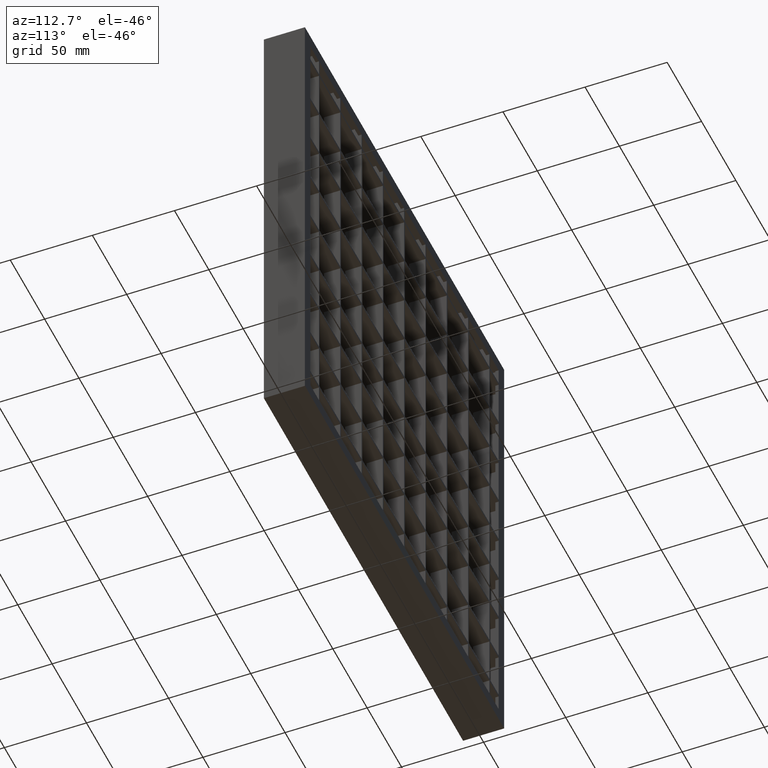
[diagram: clean part render]
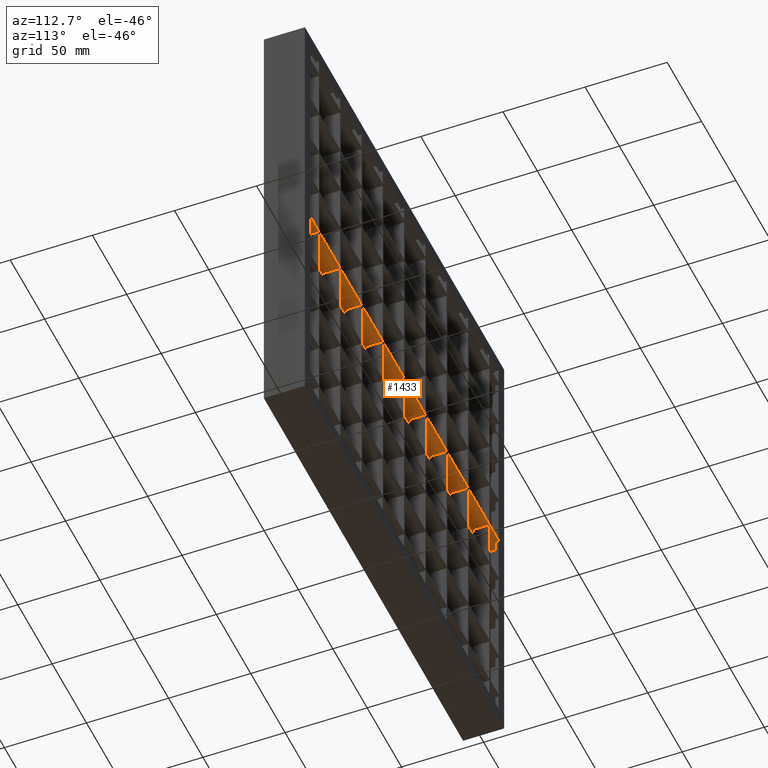
[diagram: same view with one face highlighted and labeled with its STEP entity id]
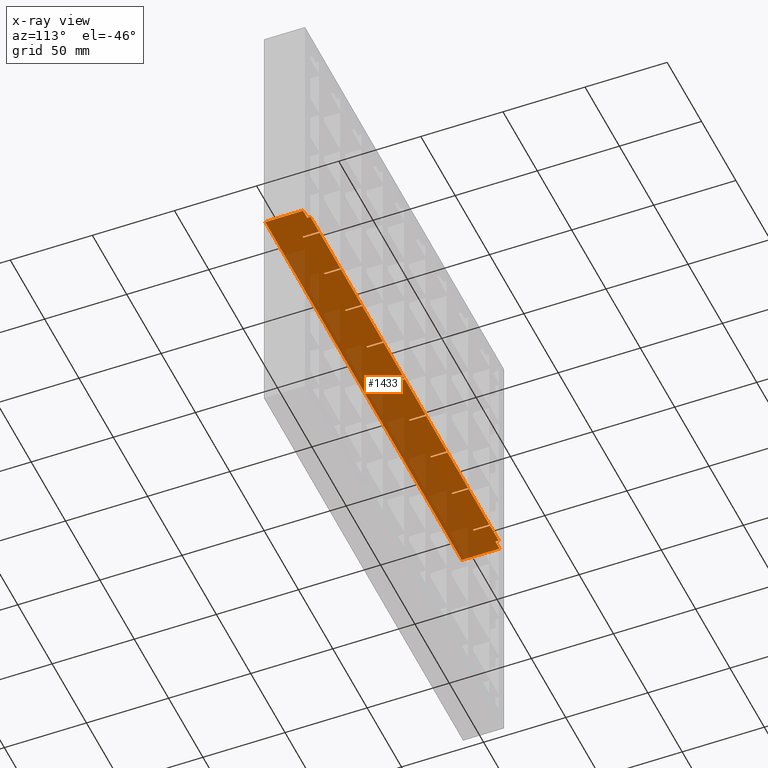
[diagram: x-ray of the same camera — body ghosted, the highlighted face saturated]
A machine part, auxiliary view. The second image highlights one B-rep face of the part: STEP entity #1433.
The next image is the same camera in x-ray: the body ghosted, the highlighted face saturated — about 39% of this face is hidden behind the body in this view.
In plain terms, the highlighted planar face has unit normal (0, 0, -1).
Its self-contained STEP definition (entity closure, byte-faithful):
#75 = LINE ( 'NONE', #12873, #5687 ) ;
#100 = ORIENTED_EDGE ( 'NONE', *, *, #13872, .T. ) ;
#215 = VERTEX_POINT ( 'NONE', #11838 ) ;
#226 = EDGE_CURVE ( 'NONE', #14384, #2598, #2343, .T. ) ;
#261 = DIRECTION ( 'NONE',  ( 1.000000000000000000, -4.336808689942014300E-016, 0.0000000000000000000 ) ) ;
#286 = CARTESIAN_POINT ( 'NONE',  ( 313.0449595727363900, -12.49999999999987700, -145.7500000000003700 ) ) ;
#361 = CARTESIAN_POINT ( 'NONE',  ( 2.000000000000002700, -12.50000000000000000, -145.7500000000003700 ) ) ;
#415 = LINE ( 'NONE', #2625, #3231 ) ;
#423 = LINE ( 'NONE', #15164, #6029 ) ;
#429 = DIRECTION ( 'NONE',  ( 1.000000000000000000, -4.336808689942014300E-016, 0.0000000000000000000 ) ) ;
#642 = LINE ( 'NONE', #10539, #11649 ) ;
#672 = DIRECTION ( 'NONE',  ( -1.000000000000000000, -4.336808689942014300E-016, 0.0000000000000000000 ) ) ;
#727 = CARTESIAN_POINT ( 'NONE',  ( 144.4999999999999700, -12.49999999999987700, -145.7500000000003700 ) ) ;
#740 = ORIENTED_EDGE ( 'NONE', *, *, #5986, .F. ) ;
#769 = ORIENTED_EDGE ( 'NONE', *, *, #9769, .F. ) ;
#839 = VECTOR ( 'NONE', #15226, 1000.000000000000000 ) ;
#873 = LINE ( 'NONE', #4006, #3293 ) ;
#988 = ORIENTED_EDGE ( 'NONE', *, *, #8355, .T. ) ;
#993 = DIRECTION ( 'NONE',  ( -1.000000000000000000, -3.061616997868382600E-016, 0.0000000000000000000 ) ) ;
#1096 = EDGE_CURVE ( 'NONE', #5256, #4355, #8677, .T. ) ;
#1158 = CARTESIAN_POINT ( 'NONE',  ( 114.4999999999999600, 2.500000000000002200, -145.7500000000003700 ) ) ;
#1213 = EDGE_CURVE ( 'NONE', #3370, #11521, #10171, .T. ) ;
#1221 = ORIENTED_EDGE ( 'NONE', *, *, #7866, .F. ) ;
#1237 = CARTESIAN_POINT ( 'NONE',  ( 282.0000000000001100, 12.50000000000000700, -145.7500000000003700 ) ) ;
#1390 = DIRECTION ( 'NONE',  ( 0.0000000000000000000, -1.000000000000000000, 0.0000000000000000000 ) ) ;
#1433 = ADVANCED_FACE ( 'NONE', ( #6227 ), #2714, .T. ) ;
#1478 = DIRECTION ( 'NONE',  ( 8.673617379884037400E-016, 1.000000000000000000, 0.0000000000000000000 ) ) ;
#1552 = ORIENTED_EDGE ( 'NONE', *, *, #3058, .F. ) ;
#1554 = CARTESIAN_POINT ( 'NONE',  ( 313.0449595727363900, 12.50000000000012400, -145.7500000000003700 ) ) ;
#1630 = ORIENTED_EDGE ( 'NONE', *, *, #11824, .T. ) ;
#1636 = CARTESIAN_POINT ( 'NONE',  ( 83.49999999999995700, 2.500000000000002200, -145.7500000000003700 ) ) ;
#1654 = ORIENTED_EDGE ( 'NONE', *, *, #12263, .T. ) ;
#1708 = VECTOR ( 'NONE', #14392, 1000.000000000000000 ) ;
#1758 = CARTESIAN_POINT ( 'NONE',  ( 313.0449595727363900, 12.50000000000012400, -145.7500000000003700 ) ) ;
#1808 = EDGE_CURVE ( 'NONE', #3598, #3147, #423, .T. ) ;
#1862 = CARTESIAN_POINT ( 'NONE',  ( 114.4999999999999600, -12.49999999999987700, -145.7500000000003700 ) ) ;
#1922 = VECTOR ( 'NONE', #3187, 1000.000000000000000 ) ;
#1936 = CARTESIAN_POINT ( 'NONE',  ( 82.49999999999995700, 2.500000000000001800, -145.7500000000003700 ) ) ;
#1947 = ORIENTED_EDGE ( 'NONE', *, *, #10652, .F. ) ;
#1950 = DIRECTION ( 'NONE',  ( -1.000000000000000000, -4.336808689942014300E-016, 0.0000000000000000000 ) ) ;
#1962 = ORIENTED_EDGE ( 'NONE', *, *, #6667, .F. ) ;
#2003 = CARTESIAN_POINT ( 'NONE',  ( 313.0449595727363900, 12.50000000000012400, -145.7500000000003700 ) ) ;
#2010 = ORIENTED_EDGE ( 'NONE', *, *, #8763, .F. ) ;
#2052 = VERTEX_POINT ( 'NONE', #14139 ) ;
#2122 = ORIENTED_EDGE ( 'NONE', *, *, #5871, .T. ) ;
#2225 = EDGE_CURVE ( 'NONE', #7339, #10629, #12707, .T. ) ;
#2316 = VERTEX_POINT ( 'NONE', #11449 ) ;
#2343 = LINE ( 'NONE', #1554, #15443 ) ;
#2372 = VERTEX_POINT ( 'NONE', #5407 ) ;
#2377 = CARTESIAN_POINT ( 'NONE',  ( 313.0449595727363900, 12.50000000000012400, -145.7500000000003700 ) ) ;
#2392 = VERTEX_POINT ( 'NONE', #14888 ) ;
#2438 = VERTEX_POINT ( 'NONE', #5563 ) ;
#2582 = ORIENTED_EDGE ( 'NONE', *, *, #2225, .F. ) ;
#2593 = VERTEX_POINT ( 'NONE', #11808 ) ;
#2598 = VERTEX_POINT ( 'NONE', #11741 ) ;
#2617 = VERTEX_POINT ( 'NONE', #9328 ) ;
#2625 = CARTESIAN_POINT ( 'NONE',  ( 313.0449595727363900, 2.500000000000115000, -145.7500000000003700 ) ) ;
#2659 = VERTEX_POINT ( 'NONE', #7059 ) ;
#2714 = PLANE ( 'NONE',  #7176 ) ;
#2744 = EDGE_LOOP ( 'NONE', ( #4537, #4223, #9492, #5272, #9778, #11828, #14726, #100, #6538, #13971, #1221, #3748, #769, #10423, #7802, #14202, #1552, #5612, #2582, #11555, #15432, #13021, #1947, #3364, #5707, #13813, #7588, #1962, #14642, #5735, #2747, #988, #1630, #4113, #740, #13260, #14456, #11890, #2010, #5100, #1654, #2122, #10784, #8662 ) ) ;
#2747 = ORIENTED_EDGE ( 'NONE', *, *, #6899, .F. ) ;
#2761 = VERTEX_POINT ( 'NONE', #8322 ) ;
#2770 = CARTESIAN_POINT ( 'NONE',  ( 313.0449595727363900, -12.49999999999987700, -145.7500000000003700 ) ) ;
#2876 = VECTOR ( 'NONE', #15550, 1000.000000000000000 ) ;
#2878 = EDGE_CURVE ( 'NONE', #3598, #7054, #5880, .T. ) ;
#2883 = EDGE_CURVE ( 'NONE', #4775, #9159, #9026, .T. ) ;
#2955 = LINE ( 'NONE', #9356, #4261 ) ;
#2962 = DIRECTION ( 'NONE',  ( -1.000000000000000000, -3.061616997868382600E-016, 0.0000000000000000000 ) ) ;
#2970 = EDGE_CURVE ( 'NONE', #12220, #9245, #12915, .T. ) ;
#3058 = EDGE_CURVE ( 'NONE', #2761, #11566, #415, .T. ) ;
#3090 = LINE ( 'NONE', #6509, #12026 ) ;
#3132 = LINE ( 'NONE', #13324, #7813 ) ;
#3147 = VERTEX_POINT ( 'NONE', #12506 ) ;
#3187 = DIRECTION ( 'NONE',  ( 0.0000000000000000000, 1.000000000000000000, 0.0000000000000000000 ) ) ;
#3191 = DIRECTION ( 'NONE',  ( 0.0000000000000000000, 1.000000000000000000, 0.0000000000000000000 ) ) ;
#3231 = VECTOR ( 'NONE', #672, 1000.000000000000000 ) ;
#3250 = DIRECTION ( 'NONE',  ( 1.000000000000000000, 0.0000000000000000000, 0.0000000000000000000 ) ) ;
#3264 = DIRECTION ( 'NONE',  ( -1.000000000000000000, -3.061616997868382600E-016, 0.0000000000000000000 ) ) ;
#3280 = VECTOR ( 'NONE', #5330, 1000.000000000000000 ) ;
#3293 = VECTOR ( 'NONE', #12271, 1000.000000000000000 ) ;
#3306 = VERTEX_POINT ( 'NONE', #14797 ) ;
#3364 = ORIENTED_EDGE ( 'NONE', *, *, #10446, .F. ) ;
#3370 = VERTEX_POINT ( 'NONE', #10134 ) ;
#3477 = CARTESIAN_POINT ( 'NONE',  ( 269.5000000000001100, 2.500000000000001800, -145.7500000000003700 ) ) ;
#3498 = LINE ( 'NONE', #8064, #11886 ) ;
#3506 = CARTESIAN_POINT ( 'NONE',  ( 20.49999999999996400, 2.500000000000001800, -145.7500000000003700 ) ) ;
#3592 = EDGE_CURVE ( 'NONE', #11566, #15080, #11585, .T. ) ;
#3597 = VERTEX_POINT ( 'NONE', #5937 ) ;
#3598 = VERTEX_POINT ( 'NONE', #1237 ) ;
#3601 = CARTESIAN_POINT ( 'NONE',  ( 269.5000000000001100, 12.50000000000000200, -145.7500000000003700 ) ) ;
#3604 = VECTOR ( 'NONE', #5070, 1000.000000000000000 ) ;
#3671 = CARTESIAN_POINT ( 'NONE',  ( 313.0449595727363900, 12.50000000000012400, -145.7500000000003700 ) ) ;
#3741 = CARTESIAN_POINT ( 'NONE',  ( 313.0449595727363900, 12.50000000000012400, -145.7500000000003700 ) ) ;
#3748 = ORIENTED_EDGE ( 'NONE', *, *, #12541, .F. ) ;
#3844 = LINE ( 'NONE', #727, #839 ) ;
#4006 = CARTESIAN_POINT ( 'NONE',  ( 238.5000000000001700, -12.49999999999987700, -145.7500000000003700 ) ) ;
#4113 = ORIENTED_EDGE ( 'NONE', *, *, #15180, .T. ) ;
#4123 = EDGE_CURVE ( 'NONE', #9159, #2372, #11378, .T. ) ;
#4160 = CARTESIAN_POINT ( 'NONE',  ( 20.49999999999990800, 12.50000000000003400, -145.7500000000003700 ) ) ;
#4219 = VECTOR ( 'NONE', #14413, 1000.000000000000000 ) ;
#4223 = ORIENTED_EDGE ( 'NONE', *, *, #15186, .T. ) ;
#4242 = LINE ( 'NONE', #2003, #13574 ) ;
#4261 = VECTOR ( 'NONE', #9410, 1000.000000000000000 ) ;
#4275 = VECTOR ( 'NONE', #11218, 1000.000000000000000 ) ;
#4285 = VERTEX_POINT ( 'NONE', #12882 ) ;
#4336 = DIRECTION ( 'NONE',  ( 8.673617379884035500E-016, -1.000000000000000000, 0.0000000000000000000 ) ) ;
#4351 = CARTESIAN_POINT ( 'NONE',  ( 313.0449595727363900, 2.499999999999955600, -145.7500000000003700 ) ) ;
#4355 = VERTEX_POINT ( 'NONE', #14094 ) ;
#4407 = DIRECTION ( 'NONE',  ( 0.0000000000000000000, 1.000000000000000000, 0.0000000000000000000 ) ) ;
#4412 = LINE ( 'NONE', #4762, #4219 ) ;
#4427 = CARTESIAN_POINT ( 'NONE',  ( 313.0449595727363900, 2.500000000000101300, -145.7500000000003700 ) ) ;
#4447 = LINE ( 'NONE', #11577, #7800 ) ;
#4502 = DIRECTION ( 'NONE',  ( 0.0000000000000000000, -1.000000000000000000, 0.0000000000000000000 ) ) ;
#4519 = LINE ( 'NONE', #4427, #6551 ) ;
#4537 = ORIENTED_EDGE ( 'NONE', *, *, #10722, .T. ) ;
#4610 = VECTOR ( 'NONE', #5918, 1000.000000000000000 ) ;
#4644 = VERTEX_POINT ( 'NONE', #12150 ) ;
#4686 = CARTESIAN_POINT ( 'NONE',  ( 145.4999999999999700, 2.500000000000002200, -145.7500000000003700 ) ) ;
#4719 = VERTEX_POINT ( 'NONE', #8597 ) ;
#4749 = VECTOR ( 'NONE', #2962, 1000.000000000000000 ) ;
#4762 = CARTESIAN_POINT ( 'NONE',  ( 269.5000000000001100, -12.49999999999987700, -145.7500000000003700 ) ) ;
#4775 = VERTEX_POINT ( 'NONE', #9952 ) ;
#4785 = LINE ( 'NONE', #11221, #3280 ) ;
#4839 = LINE ( 'NONE', #9221, #6867 ) ;
#4890 = LINE ( 'NONE', #10002, #8823 ) ;
#4972 = CARTESIAN_POINT ( 'NONE',  ( 313.0449595727363900, 2.499999999999943200, -145.7500000000003700 ) ) ;
#5041 = CARTESIAN_POINT ( 'NONE',  ( 52.49999999999996400, 12.50000000000000200, -145.7500000000003700 ) ) ;
#5070 = DIRECTION ( 'NONE',  ( 0.0000000000000000000, -1.000000000000000000, 0.0000000000000000000 ) ) ;
#5100 = ORIENTED_EDGE ( 'NONE', *, *, #2970, .T. ) ;
#5119 = VECTOR ( 'NONE', #12437, 1000.000000000000000 ) ;
#5256 = VERTEX_POINT ( 'NONE', #5318 ) ;
#5272 = ORIENTED_EDGE ( 'NONE', *, *, #1808, .T. ) ;
#5318 = CARTESIAN_POINT ( 'NONE',  ( 288.0000000000000600, -12.50000000000000000, -145.7500000000003700 ) ) ;
#5330 = DIRECTION ( 'NONE',  ( -1.000000000000000000, -3.061616997868382600E-016, 0.0000000000000000000 ) ) ;
#5379 = VECTOR ( 'NONE', #12252, 1000.000000000000000 ) ;
#5407 = CARTESIAN_POINT ( 'NONE',  ( 144.4999999999999700, 2.500000000000001800, -145.7500000000003700 ) ) ;
#5502 = DIRECTION ( 'NONE',  ( -1.000000000000000000, -3.061616997868382600E-016, 0.0000000000000000000 ) ) ;
#5563 = CARTESIAN_POINT ( 'NONE',  ( 114.4999999999999600, 12.50000000000000200, -145.7500000000003700 ) ) ;
#5612 = ORIENTED_EDGE ( 'NONE', *, *, #10771, .F. ) ;
#5687 = VECTOR ( 'NONE', #993, 1000.000000000000000 ) ;
#5707 = ORIENTED_EDGE ( 'NONE', *, *, #7295, .F. ) ;
#5735 = ORIENTED_EDGE ( 'NONE', *, *, #2883, .F. ) ;
#5803 = CARTESIAN_POINT ( 'NONE',  ( 145.0000000000000600, 10.50000000000000500, -145.7500000000003700 ) ) ;
#5871 = EDGE_CURVE ( 'NONE', #4644, #2598, #873, .T. ) ;
#5880 = LINE ( 'NONE', #2377, #2876 ) ;
#5887 = DIRECTION ( 'NONE',  ( -1.000000000000000000, -4.336808689942014300E-016, 0.0000000000000000000 ) ) ;
#5918 = DIRECTION ( 'NONE',  ( 0.0000000000000000000, -1.000000000000000000, 0.0000000000000000000 ) ) ;
#5937 = CARTESIAN_POINT ( 'NONE',  ( 144.4999999999999700, 12.50000000000007100, -145.7500000000003700 ) ) ;
#5980 = VERTEX_POINT ( 'NONE', #4160 ) ;
#5986 = EDGE_CURVE ( 'NONE', #3306, #11696, #4242, .T. ) ;
#6029 = VECTOR ( 'NONE', #4336, 1000.000000000000000 ) ;
#6157 = VECTOR ( 'NONE', #7799, 1000.000000000000000 ) ;
#6220 = VERTEX_POINT ( 'NONE', #13215 ) ;
#6227 = FACE_OUTER_BOUND ( 'NONE', #2744, .T. ) ;
#6252 = EDGE_CURVE ( 'NONE', #3306, #2659, #7782, .T. ) ;
#6405 = VERTEX_POINT ( 'NONE', #361 ) ;
#6440 = EDGE_CURVE ( 'NONE', #13225, #6220, #7402, .T. ) ;
#6448 = CARTESIAN_POINT ( 'NONE',  ( 113.4999999999999600, 12.50000000000006400, -145.7500000000003700 ) ) ;
#6509 = CARTESIAN_POINT ( 'NONE',  ( 2.000000000000002700, 10.50000000000000500, -145.7500000000003700 ) ) ;
#6538 = ORIENTED_EDGE ( 'NONE', *, *, #15490, .T. ) ;
#6545 = EDGE_CURVE ( 'NONE', #15080, #3370, #4785, .T. ) ;
#6551 = VECTOR ( 'NONE', #9334, 1000.000000000000000 ) ;
#6667 = EDGE_CURVE ( 'NONE', #2372, #3597, #3844, .T. ) ;
#6743 = LINE ( 'NONE', #3741, #1708 ) ;
#6800 = EDGE_CURVE ( 'NONE', #11673, #11236, #9641, .T. ) ;
#6867 = VECTOR ( 'NONE', #3264, 1000.000000000000000 ) ;
#6899 = EDGE_CURVE ( 'NONE', #2392, #4775, #75, .T. ) ;
#7054 = VERTEX_POINT ( 'NONE', #3601 ) ;
#7059 = CARTESIAN_POINT ( 'NONE',  ( 206.5000000000001100, 2.500000000000002200, -145.7500000000003700 ) ) ;
#7137 = DIRECTION ( 'NONE',  ( 0.0000000000000000000, 1.000000000000000000, 0.0000000000000000000 ) ) ;
#7176 = AXIS2_PLACEMENT_3D ( 'NONE', #2770, #12345, #7629 ) ;
#7295 = EDGE_CURVE ( 'NONE', #7869, #2617, #7551, .T. ) ;
#7339 = VERTEX_POINT ( 'NONE', #9077 ) ;
#7402 = LINE ( 'NONE', #9733, #8706 ) ;
#7491 = LINE ( 'NONE', #7902, #11223 ) ;
#7551 = LINE ( 'NONE', #15474, #10172 ) ;
#7588 = ORIENTED_EDGE ( 'NONE', *, *, #11969, .F. ) ;
#7629 = DIRECTION ( 'NONE',  ( -1.000000000000000000, 0.0000000000000000000, 0.0000000000000000000 ) ) ;
#7702 = LINE ( 'NONE', #8817, #8263 ) ;
#7727 = DIRECTION ( 'NONE',  ( 1.000000000000000000, 0.0000000000000000000, 0.0000000000000000000 ) ) ;
#7782 = LINE ( 'NONE', #8388, #4610 ) ;
#7799 = DIRECTION ( 'NONE',  ( 1.000000000000000000, -4.336808689942014300E-016, 0.0000000000000000000 ) ) ;
#7800 = VECTOR ( 'NONE', #3191, 1000.000000000000000 ) ;
#7802 = ORIENTED_EDGE ( 'NONE', *, *, #6545, .F. ) ;
#7813 = VECTOR ( 'NONE', #261, 1000.000000000000000 ) ;
#7866 = EDGE_CURVE ( 'NONE', #5980, #6220, #10713, .T. ) ;
#7869 = VERTEX_POINT ( 'NONE', #1158 ) ;
#7902 = CARTESIAN_POINT ( 'NONE',  ( 113.4999999999999600, -12.49999999999987700, -145.7500000000003700 ) ) ;
#7998 = CARTESIAN_POINT ( 'NONE',  ( 288.0000000000000600, -12.49999999999987700, -145.7500000000003700 ) ) ;
#8064 = CARTESIAN_POINT ( 'NONE',  ( 207.5000000000001400, -12.49999999999987700, -145.7500000000003700 ) ) ;
#8263 = VECTOR ( 'NONE', #12432, 1000.000000000000000 ) ;
#8308 = CARTESIAN_POINT ( 'NONE',  ( 83.49999999999995700, -12.49999999999987700, -145.7500000000003700 ) ) ;
#8322 = CARTESIAN_POINT ( 'NONE',  ( 52.49999999999996400, 2.500000000000002200, -145.7500000000003700 ) ) ;
#8355 = EDGE_CURVE ( 'NONE', #2392, #4719, #642, .T. ) ;
#8377 = VECTOR ( 'NONE', #12287, 1000.000000000000000 ) ;
#8388 = CARTESIAN_POINT ( 'NONE',  ( 206.5000000000001100, -12.49999999999987700, -145.7500000000003700 ) ) ;
#8473 = VECTOR ( 'NONE', #9576, 1000.000000000000000 ) ;
#8518 = VECTOR ( 'NONE', #14469, 1000.000000000000000 ) ;
#8566 = DIRECTION ( 'NONE',  ( 1.000000000000000000, -4.336808689942014300E-016, 0.0000000000000000000 ) ) ;
#8578 = EDGE_CURVE ( 'NONE', #5256, #6405, #9980, .T. ) ;
#8597 = CARTESIAN_POINT ( 'NONE',  ( 175.5000000000001100, 2.500000000000002200, -145.7500000000003700 ) ) ;
#8662 = ORIENTED_EDGE ( 'NONE', *, *, #13715, .T. ) ;
#8677 = LINE ( 'NONE', #7998, #1922 ) ;
#8687 = VERTEX_POINT ( 'NONE', #6448 ) ;
#8706 = VECTOR ( 'NONE', #1478, 1000.000000000000000 ) ;
#8718 = EDGE_CURVE ( 'NONE', #2438, #7869, #14853, .T. ) ;
#8763 = EDGE_CURVE ( 'NONE', #12220, #2593, #9789, .T. ) ;
#8789 = CARTESIAN_POINT ( 'NONE',  ( 268.5000000000001100, -12.49999999999987700, -145.7500000000003700 ) ) ;
#8817 = CARTESIAN_POINT ( 'NONE',  ( 313.0449595727363900, 2.500000000000128800, -145.7500000000003700 ) ) ;
#8823 = VECTOR ( 'NONE', #429, 1000.000000000000000 ) ;
#8896 = VECTOR ( 'NONE', #4502, 1000.000000000000000 ) ;
#9015 = CARTESIAN_POINT ( 'NONE',  ( 313.0449595727363900, 2.500000000000075100, -145.7500000000003700 ) ) ;
#9026 = LINE ( 'NONE', #9579, #5379 ) ;
#9034 = CARTESIAN_POINT ( 'NONE',  ( 21.49999999999996400, -12.49999999999987700, -145.7500000000003700 ) ) ;
#9077 = CARTESIAN_POINT ( 'NONE',  ( 82.49999999999995700, 12.50000000000005300, -145.7500000000003700 ) ) ;
#9156 = VERTEX_POINT ( 'NONE', #3477 ) ;
#9159 = VERTEX_POINT ( 'NONE', #4686 ) ;
#9221 = CARTESIAN_POINT ( 'NONE',  ( 313.0449595727363900, 12.50000000000012400, -145.7500000000003700 ) ) ;
#9245 = VERTEX_POINT ( 'NONE', #12115 ) ;
#9316 = CARTESIAN_POINT ( 'NONE',  ( 51.49999999999993600, 12.50000000000004400, -145.7500000000003700 ) ) ;
#9328 = CARTESIAN_POINT ( 'NONE',  ( 113.4999999999999600, 2.500000000000001800, -145.7500000000003700 ) ) ;
#9334 = DIRECTION ( 'NONE',  ( -1.000000000000000000, -4.336808689942014300E-016, 0.0000000000000000000 ) ) ;
#9356 = CARTESIAN_POINT ( 'NONE',  ( 2.000000000000002700, -12.50000000000000000, -145.7500000000003700 ) ) ;
#9410 = DIRECTION ( 'NONE',  ( 0.0000000000000000000, 1.000000000000000000, 0.0000000000000000000 ) ) ;
#9492 = ORIENTED_EDGE ( 'NONE', *, *, #2878, .F. ) ;
#9576 = DIRECTION ( 'NONE',  ( -1.000000000000000000, -3.061616997868382600E-016, 0.0000000000000000000 ) ) ;
#9579 = CARTESIAN_POINT ( 'NONE',  ( 145.4999999999999700, -12.49999999999987700, -145.7500000000003700 ) ) ;
#9580 = VECTOR ( 'NONE', #11151, 1000.000000000000000 ) ;
#9641 = LINE ( 'NONE', #8308, #8896 ) ;
#9715 = VECTOR ( 'NONE', #3250, 1000.000000000000000 ) ;
#9733 = CARTESIAN_POINT ( 'NONE',  ( 7.999999999999992900, 10.50000000000000500, -145.7500000000003700 ) ) ;
#9769 = EDGE_CURVE ( 'NONE', #11521, #13952, #7702, .T. ) ;
#9778 = ORIENTED_EDGE ( 'NONE', *, *, #11528, .T. ) ;
#9789 = LINE ( 'NONE', #1758, #4749 ) ;
#9866 = LINE ( 'NONE', #14672, #8377 ) ;
#9952 = CARTESIAN_POINT ( 'NONE',  ( 145.4999999999999700, 12.50000000000000200, -145.7500000000003700 ) ) ;
#9980 = LINE ( 'NONE', #286, #11837 ) ;
#10002 = CARTESIAN_POINT ( 'NONE',  ( 313.0449595727363900, 2.499999999999983100, -145.7500000000003700 ) ) ;
#10134 = CARTESIAN_POINT ( 'NONE',  ( 21.49999999999996400, 12.50000000000000200, -145.7500000000003700 ) ) ;
#10171 = LINE ( 'NONE', #9034, #15044 ) ;
#10172 = VECTOR ( 'NONE', #5887, 1000.000000000000000 ) ;
#10295 = VECTOR ( 'NONE', #7137, 1000.000000000000000 ) ;
#10423 = ORIENTED_EDGE ( 'NONE', *, *, #1213, .F. ) ;
#10446 = EDGE_CURVE ( 'NONE', #2617, #8687, #7491, .T. ) ;
#10454 = CARTESIAN_POINT ( 'NONE',  ( 51.49999999999996400, 2.500000000000001800, -145.7500000000003700 ) ) ;
#10481 = CARTESIAN_POINT ( 'NONE',  ( 7.999999999999992900, 10.50000000000000500, -145.7500000000003700 ) ) ;
#10538 = EDGE_CURVE ( 'NONE', #11236, #11363, #4519, .T. ) ;
#10539 = CARTESIAN_POINT ( 'NONE',  ( 175.5000000000001100, -12.49999999999987700, -145.7500000000003700 ) ) ;
#10563 = CARTESIAN_POINT ( 'NONE',  ( 268.5000000000001100, 12.50000000000000200, -145.7500000000003700 ) ) ;
#10629 = VERTEX_POINT ( 'NONE', #5041 ) ;
#10652 = EDGE_CURVE ( 'NONE', #8687, #11673, #6743, .T. ) ;
#10658 = CARTESIAN_POINT ( 'NONE',  ( 83.49999999999995700, 12.50000000000000200, -145.7500000000003700 ) ) ;
#10713 = LINE ( 'NONE', #3671, #8473 ) ;
#10722 = EDGE_CURVE ( 'NONE', #2316, #9156, #4890, .T. ) ;
#10771 = EDGE_CURVE ( 'NONE', #10629, #2761, #14604, .T. ) ;
#10784 = ORIENTED_EDGE ( 'NONE', *, *, #226, .F. ) ;
#11151 = DIRECTION ( 'NONE',  ( -1.000000000000000000, -3.061616997868382600E-016, 0.0000000000000000000 ) ) ;
#11196 = CARTESIAN_POINT ( 'NONE',  ( 313.0449595727363900, 12.50000000000012400, -145.7500000000003700 ) ) ;
#11218 = DIRECTION ( 'NONE',  ( 0.0000000000000000000, -1.000000000000000000, 0.0000000000000000000 ) ) ;
#11221 = CARTESIAN_POINT ( 'NONE',  ( 313.0449595727363900, 12.50000000000012400, -145.7500000000003700 ) ) ;
#11223 = VECTOR ( 'NONE', #4407, 1000.000000000000000 ) ;
#11236 = VERTEX_POINT ( 'NONE', #1636 ) ;
#11344 = EDGE_CURVE ( 'NONE', #2659, #2052, #14183, .T. ) ;
#11363 = VERTEX_POINT ( 'NONE', #1936 ) ;
#11378 = LINE ( 'NONE', #9015, #12869 ) ;
#11449 = CARTESIAN_POINT ( 'NONE',  ( 268.5000000000001100, 2.500000000000002200, -145.7500000000003700 ) ) ;
#11521 = VERTEX_POINT ( 'NONE', #12989 ) ;
#11528 = EDGE_CURVE ( 'NONE', #3147, #4355, #12117, .T. ) ;
#11555 = ORIENTED_EDGE ( 'NONE', *, *, #14150, .F. ) ;
#11566 = VERTEX_POINT ( 'NONE', #10454 ) ;
#11577 = CARTESIAN_POINT ( 'NONE',  ( 20.49999999999996400, -12.49999999999987700, -145.7500000000003700 ) ) ;
#11585 = LINE ( 'NONE', #13235, #10295 ) ;
#11649 = VECTOR ( 'NONE', #13083, 1000.000000000000000 ) ;
#11673 = VERTEX_POINT ( 'NONE', #10658 ) ;
#11696 = VERTEX_POINT ( 'NONE', #11841 ) ;
#11741 = CARTESIAN_POINT ( 'NONE',  ( 238.5000000000001700, 12.50000000000000200, -145.7500000000003700 ) ) ;
#11769 = VECTOR ( 'NONE', #14063, 1000.000000000000000 ) ;
#11808 = CARTESIAN_POINT ( 'NONE',  ( 207.5000000000001400, 12.50000000000000200, -145.7500000000003700 ) ) ;
#11824 = EDGE_CURVE ( 'NONE', #4719, #4285, #14946, .T. ) ;
#11828 = ORIENTED_EDGE ( 'NONE', *, *, #1096, .F. ) ;
#11837 = VECTOR ( 'NONE', #14616, 1000.000000000000000 ) ;
#11838 = CARTESIAN_POINT ( 'NONE',  ( 2.000000000000002700, 10.50000000000000500, -145.7500000000003700 ) ) ;
#11841 = CARTESIAN_POINT ( 'NONE',  ( 176.5000000000001100, 12.50000000000000200, -145.7500000000003700 ) ) ;
#11886 = VECTOR ( 'NONE', #13999, 1000.000000000000000 ) ;
#11890 = ORIENTED_EDGE ( 'NONE', *, *, #14408, .T. ) ;
#11949 = CARTESIAN_POINT ( 'NONE',  ( 176.5000000000001100, -12.49999999999987700, -145.7500000000003700 ) ) ;
#11969 = EDGE_CURVE ( 'NONE', #3597, #2438, #4839, .T. ) ;
#12026 = VECTOR ( 'NONE', #7727, 1000.000000000000000 ) ;
#12115 = CARTESIAN_POINT ( 'NONE',  ( 237.5000000000001400, 2.500000000000002200, -145.7500000000003700 ) ) ;
#12117 = LINE ( 'NONE', #5803, #9715 ) ;
#12150 = CARTESIAN_POINT ( 'NONE',  ( 238.5000000000001700, 2.500000000000001800, -145.7500000000003700 ) ) ;
#12220 = VERTEX_POINT ( 'NONE', #14546 ) ;
#12252 = DIRECTION ( 'NONE',  ( 0.0000000000000000000, -1.000000000000000000, 0.0000000000000000000 ) ) ;
#12263 = EDGE_CURVE ( 'NONE', #9245, #4644, #3132, .T. ) ;
#12271 = DIRECTION ( 'NONE',  ( 0.0000000000000000000, 1.000000000000000000, 0.0000000000000000000 ) ) ;
#12287 = DIRECTION ( 'NONE',  ( 0.0000000000000000000, 1.000000000000000000, 0.0000000000000000000 ) ) ;
#12345 = DIRECTION ( 'NONE',  ( 0.0000000000000000000, 0.0000000000000000000, -1.000000000000000000 ) ) ;
#12432 = DIRECTION ( 'NONE',  ( -1.000000000000000000, -4.336808689942014300E-016, 0.0000000000000000000 ) ) ;
#12437 = DIRECTION ( 'NONE',  ( 0.0000000000000000000, -1.000000000000000000, 0.0000000000000000000 ) ) ;
#12506 = CARTESIAN_POINT ( 'NONE',  ( 282.0000000000000000, 10.50000000000000500, -145.7500000000003700 ) ) ;
#12541 = EDGE_CURVE ( 'NONE', #13952, #5980, #4447, .T. ) ;
#12707 = LINE ( 'NONE', #11196, #9580 ) ;
#12869 = VECTOR ( 'NONE', #1950, 1000.000000000000000 ) ;
#12873 = CARTESIAN_POINT ( 'NONE',  ( 313.0449595727363900, 12.50000000000012400, -145.7500000000003700 ) ) ;
#12882 = CARTESIAN_POINT ( 'NONE',  ( 176.5000000000001100, 2.500000000000001800, -145.7500000000003700 ) ) ;
#12915 = LINE ( 'NONE', #14748, #3604 ) ;
#12989 = CARTESIAN_POINT ( 'NONE',  ( 21.49999999999996400, 2.500000000000002200, -145.7500000000003700 ) ) ;
#13021 = ORIENTED_EDGE ( 'NONE', *, *, #6800, .F. ) ;
#13083 = DIRECTION ( 'NONE',  ( 0.0000000000000000000, -1.000000000000000000, 0.0000000000000000000 ) ) ;
#13215 = CARTESIAN_POINT ( 'NONE',  ( 7.999999999999994700, 12.50000000000000500, -145.7500000000004300 ) ) ;
#13225 = VERTEX_POINT ( 'NONE', #10481 ) ;
#13235 = CARTESIAN_POINT ( 'NONE',  ( 51.49999999999999300, -12.49999999999987700, -145.7500000000003700 ) ) ;
#13260 = ORIENTED_EDGE ( 'NONE', *, *, #6252, .T. ) ;
#13324 = CARTESIAN_POINT ( 'NONE',  ( 313.0449595727363900, 2.499999999999969400, -145.7500000000003700 ) ) ;
#13574 = VECTOR ( 'NONE', #5502, 1000.000000000000000 ) ;
#13715 = EDGE_CURVE ( 'NONE', #14384, #2316, #14762, .T. ) ;
#13813 = ORIENTED_EDGE ( 'NONE', *, *, #8718, .F. ) ;
#13872 = EDGE_CURVE ( 'NONE', #6405, #215, #2955, .T. ) ;
#13952 = VERTEX_POINT ( 'NONE', #3506 ) ;
#13971 = ORIENTED_EDGE ( 'NONE', *, *, #6440, .T. ) ;
#13999 = DIRECTION ( 'NONE',  ( 0.0000000000000000000, 1.000000000000000000, 0.0000000000000000000 ) ) ;
#14063 = DIRECTION ( 'NONE',  ( 0.0000000000000000000, -1.000000000000000000, 0.0000000000000000000 ) ) ;
#14094 = CARTESIAN_POINT ( 'NONE',  ( 288.0000000000000000, 10.50000000000000500, -145.7500000000003700 ) ) ;
#14106 = LINE ( 'NONE', #11949, #8518 ) ;
#14139 = CARTESIAN_POINT ( 'NONE',  ( 207.5000000000001400, 2.500000000000001800, -145.7500000000003700 ) ) ;
#14150 = EDGE_CURVE ( 'NONE', #11363, #7339, #9866, .T. ) ;
#14183 = LINE ( 'NONE', #4351, #6157 ) ;
#14202 = ORIENTED_EDGE ( 'NONE', *, *, #3592, .F. ) ;
#14384 = VERTEX_POINT ( 'NONE', #10563 ) ;
#14392 = DIRECTION ( 'NONE',  ( -1.000000000000000000, -3.061616997868382600E-016, 0.0000000000000000000 ) ) ;
#14408 = EDGE_CURVE ( 'NONE', #2052, #2593, #3498, .T. ) ;
#14413 = DIRECTION ( 'NONE',  ( 0.0000000000000000000, 1.000000000000000000, 0.0000000000000000000 ) ) ;
#14456 = ORIENTED_EDGE ( 'NONE', *, *, #11344, .T. ) ;
#14469 = DIRECTION ( 'NONE',  ( 0.0000000000000000000, 1.000000000000000000, 0.0000000000000000000 ) ) ;
#14546 = CARTESIAN_POINT ( 'NONE',  ( 237.5000000000001400, 12.50000000000000200, -145.7500000000003700 ) ) ;
#14604 = LINE ( 'NONE', #14769, #11769 ) ;
#14616 = DIRECTION ( 'NONE',  ( -1.000000000000000000, -3.061616997868382600E-016, 0.0000000000000000000 ) ) ;
#14627 = DIRECTION ( 'NONE',  ( -1.000000000000000000, -3.061616997868382600E-016, 0.0000000000000000000 ) ) ;
#14642 = ORIENTED_EDGE ( 'NONE', *, *, #4123, .F. ) ;
#14672 = CARTESIAN_POINT ( 'NONE',  ( 82.49999999999995700, -12.49999999999987700, -145.7500000000003700 ) ) ;
#14726 = ORIENTED_EDGE ( 'NONE', *, *, #8578, .T. ) ;
#14748 = CARTESIAN_POINT ( 'NONE',  ( 237.5000000000001400, -12.49999999999987700, -145.7500000000003700 ) ) ;
#14762 = LINE ( 'NONE', #8789, #4275 ) ;
#14769 = CARTESIAN_POINT ( 'NONE',  ( 52.49999999999999300, -12.49999999999987700, -145.7500000000003700 ) ) ;
#14797 = CARTESIAN_POINT ( 'NONE',  ( 206.5000000000001100, 12.50000000000000200, -145.7500000000003700 ) ) ;
#14853 = LINE ( 'NONE', #1862, #5119 ) ;
#14888 = CARTESIAN_POINT ( 'NONE',  ( 175.5000000000001100, 12.50000000000000200, -145.7500000000003700 ) ) ;
#14946 = LINE ( 'NONE', #4972, #15331 ) ;
#15044 = VECTOR ( 'NONE', #1390, 1000.000000000000000 ) ;
#15080 = VERTEX_POINT ( 'NONE', #9316 ) ;
#15164 = CARTESIAN_POINT ( 'NONE',  ( 282.0000000000000000, 10.50000000000019200, -145.7500000000003700 ) ) ;
#15180 = EDGE_CURVE ( 'NONE', #4285, #11696, #14106, .T. ) ;
#15186 = EDGE_CURVE ( 'NONE', #9156, #7054, #4412, .T. ) ;
#15226 = DIRECTION ( 'NONE',  ( 0.0000000000000000000, 1.000000000000000000, 0.0000000000000000000 ) ) ;
#15331 = VECTOR ( 'NONE', #8566, 1000.000000000000000 ) ;
#15432 = ORIENTED_EDGE ( 'NONE', *, *, #10538, .F. ) ;
#15443 = VECTOR ( 'NONE', #14627, 1000.000000000000000 ) ;
#15474 = CARTESIAN_POINT ( 'NONE',  ( 313.0449595727363900, 2.500000000000088800, -145.7500000000003700 ) ) ;
#15490 = EDGE_CURVE ( 'NONE', #215, #13225, #3090, .T. ) ;
#15550 = DIRECTION ( 'NONE',  ( -1.000000000000000000, -3.061616997868382600E-016, 0.0000000000000000000 ) ) ;